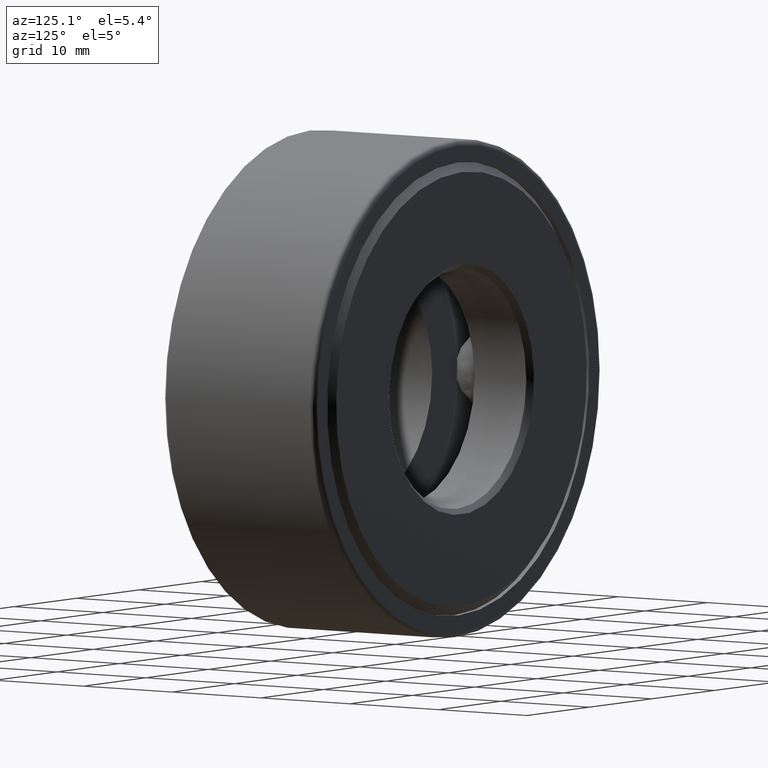
[diagram: clean part render]
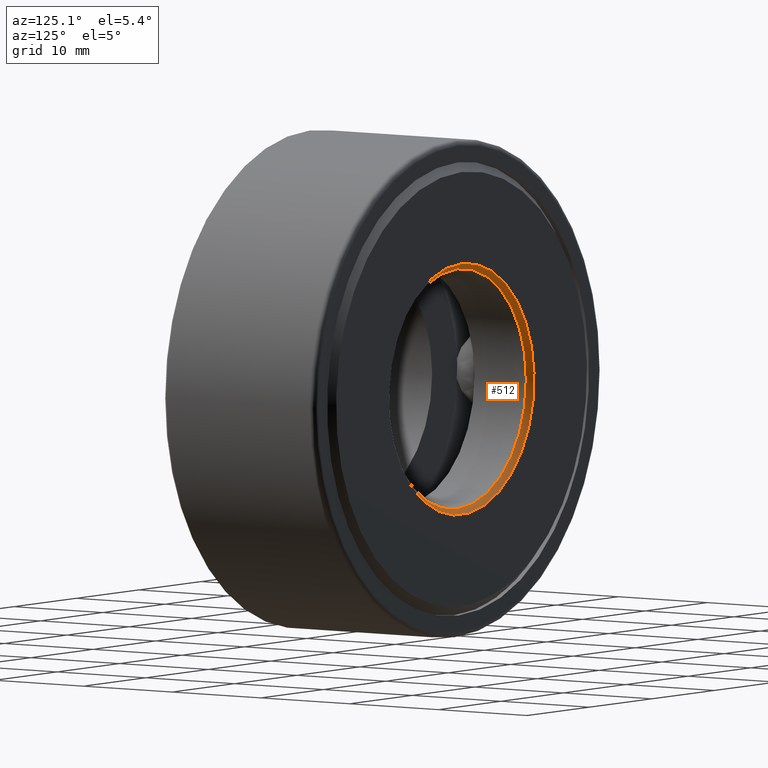
[diagram: same view with one face highlighted and labeled with its STEP entity id]
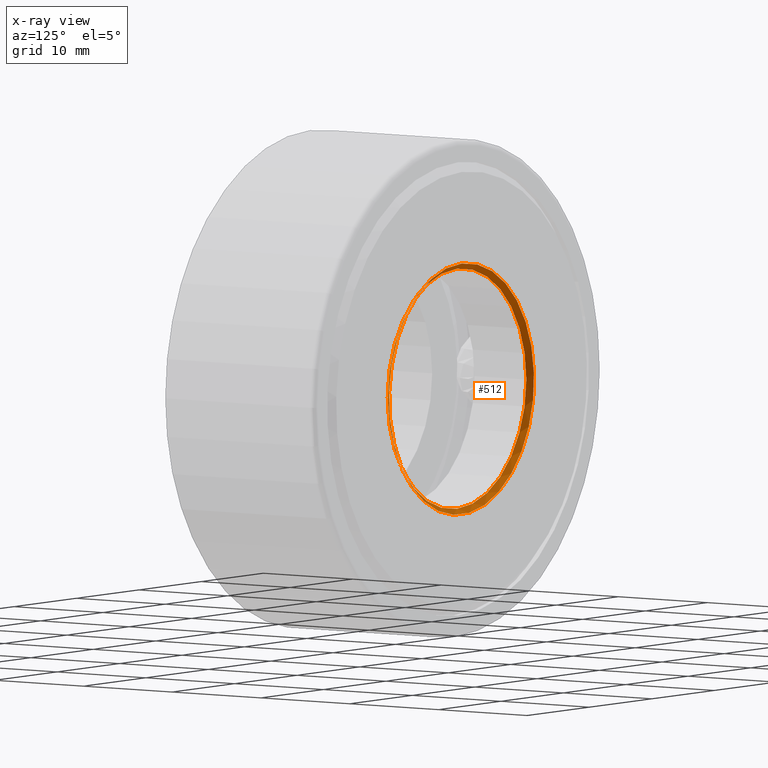
[diagram: x-ray of the same camera — body ghosted, the highlighted face saturated]
A machine part, auxiliary view. The second image highlights one B-rep face of the part: STEP entity #512.
The next image is the same camera in x-ray: the body ghosted, the highlighted face saturated — about 0% of this face is hidden behind the body in this view.
In plain terms, the highlighted conical surface has half-angle 45 deg.
Its self-contained STEP definition (entity closure, byte-faithful):
#1 = AXIS2_PLACEMENT_3D ( 'NONE', #61, #114, #575 ) ;
#10 = CONICAL_SURFACE ( 'NONE', #309, 0.4375000000000000600, 0.7853981633974482800 ) ;
#56 = FACE_BOUND ( 'NONE', #149, .T. ) ;
#61 = CARTESIAN_POINT ( 'NONE',  ( 0.0000000000000000000, 0.6875000000000000000, 0.0000000000000000000 ) ) ;
#114 = DIRECTION ( 'NONE',  ( -0.0000000000000000000, 1.000000000000000000, -0.0000000000000000000 ) ) ;
#127 = DIRECTION ( 'NONE',  ( 0.0000000000000000000, 0.0000000000000000000, 1.000000000000000000 ) ) ;
#141 = CARTESIAN_POINT ( 'NONE',  ( 0.0000000000000000000, 0.6875000000000000000, 0.4575000000000001300 ) ) ;
#149 = EDGE_LOOP ( 'NONE', ( #300 ) ) ;
#164 = EDGE_LOOP ( 'NONE', ( #217 ) ) ;
#217 = ORIENTED_EDGE ( 'NONE', *, *, #433, .T. ) ;
#220 = AXIS2_PLACEMENT_3D ( 'NONE', #497, #545, #265 ) ;
#265 = DIRECTION ( 'NONE',  ( 0.0000000000000000000, 0.0000000000000000000, 1.000000000000000000 ) ) ;
#296 = CIRCLE ( 'NONE', #1, 0.4575000000000001300 ) ;
#300 = ORIENTED_EDGE ( 'NONE', *, *, #502, .F. ) ;
#309 = AXIS2_PLACEMENT_3D ( 'NONE', #408, #457, #127 ) ;
#311 = FACE_OUTER_BOUND ( 'NONE', #164, .T. ) ;
#320 = VERTEX_POINT ( 'NONE', #141 ) ;
#408 = CARTESIAN_POINT ( 'NONE',  ( 0.0000000000000000000, 0.6674999999999998700, 0.0000000000000000000 ) ) ;
#425 = CIRCLE ( 'NONE', #220, 0.4375000000000000600 ) ;
#433 = EDGE_CURVE ( 'NONE', #320, #320, #296, .T. ) ;
#452 = VERTEX_POINT ( 'NONE', #507 ) ;
#457 = DIRECTION ( 'NONE',  ( -0.0000000000000000000, 1.000000000000000000, -0.0000000000000000000 ) ) ;
#497 = CARTESIAN_POINT ( 'NONE',  ( 0.0000000000000000000, 0.6674999999999998700, 0.0000000000000000000 ) ) ;
#502 = EDGE_CURVE ( 'NONE', #452, #452, #425, .T. ) ;
#507 = CARTESIAN_POINT ( 'NONE',  ( 0.0000000000000000000, 0.6674999999999998700, 0.4375000000000000600 ) ) ;
#512 = ADVANCED_FACE ( 'NONE', ( #311, #56 ), #10, .F. ) ;
#545 = DIRECTION ( 'NONE',  ( -0.0000000000000000000, 1.000000000000000000, -0.0000000000000000000 ) ) ;
#575 = DIRECTION ( 'NONE',  ( 0.0000000000000000000, 0.0000000000000000000, 1.000000000000000000 ) ) ;